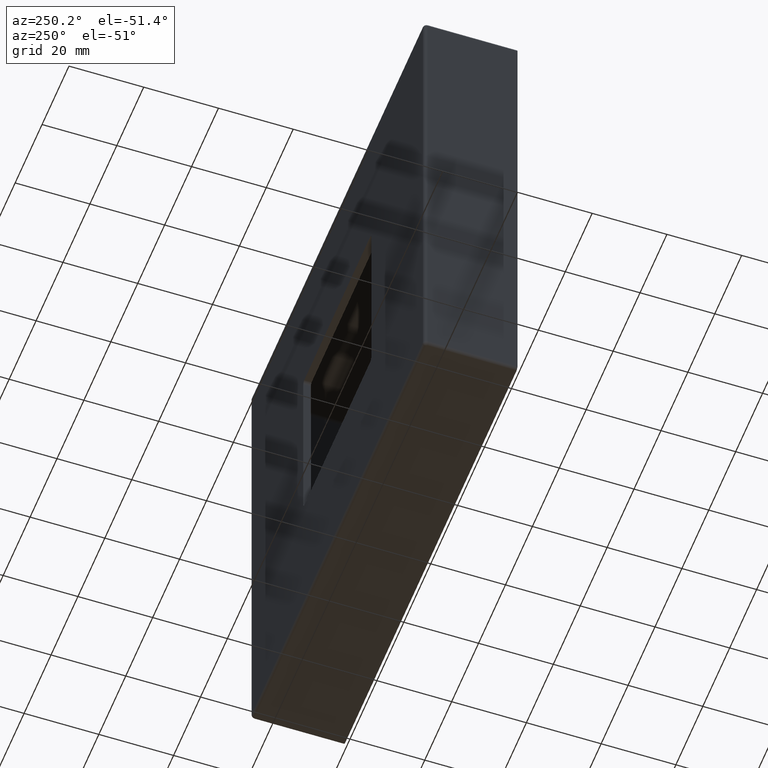
[diagram: clean part render]
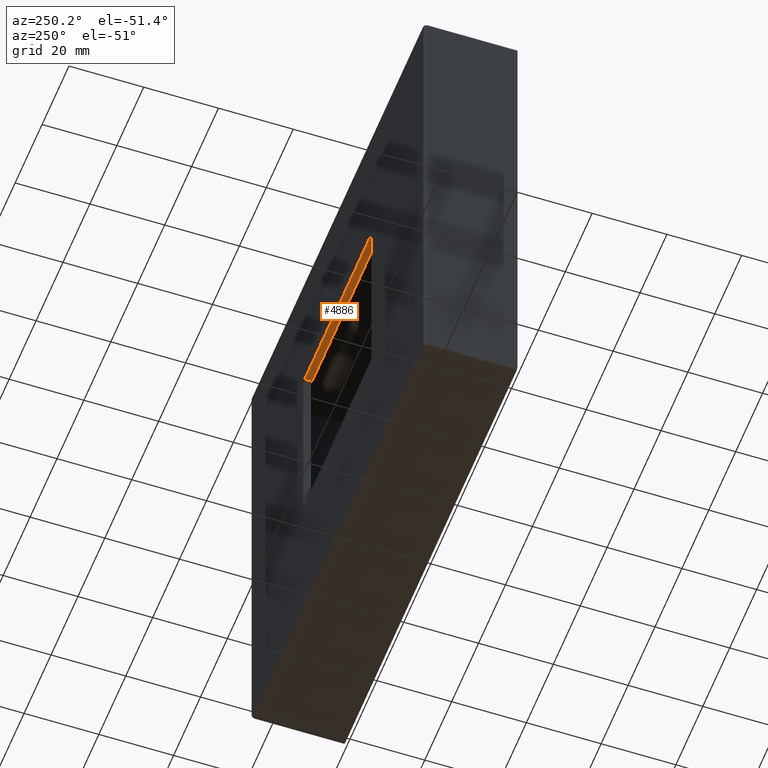
[diagram: same view with one face highlighted and labeled with its STEP entity id]
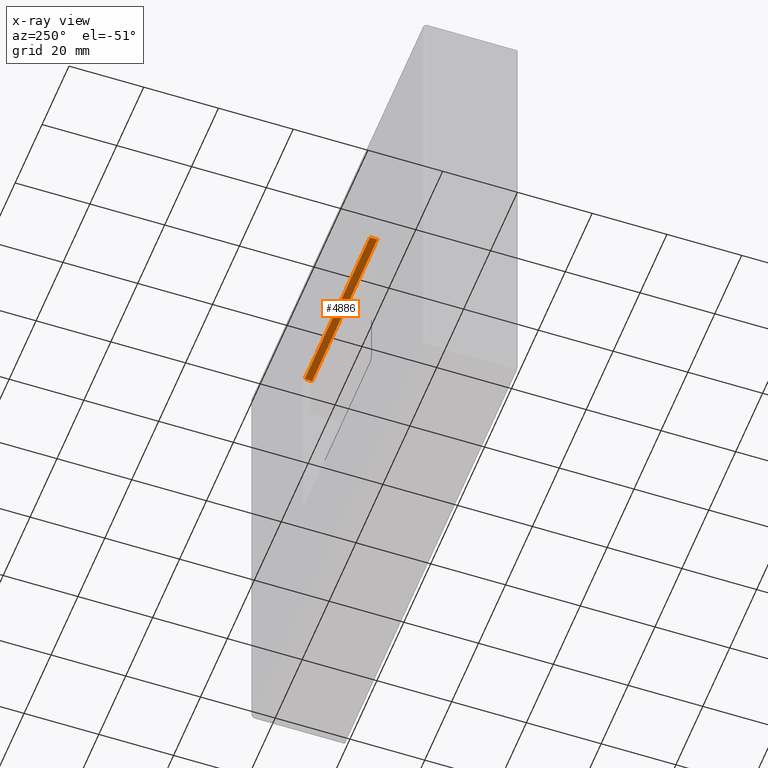
[diagram: x-ray of the same camera — body ghosted, the highlighted face saturated]
A machine part, auxiliary view. The second image highlights one B-rep face of the part: STEP entity #4886.
The next image is the same camera in x-ray: the body ghosted, the highlighted face saturated — about 0% of this face is hidden behind the body in this view.
In plain terms, the highlighted planar face has unit normal (-0, 0, 1).
Its self-contained STEP definition (entity closure, byte-faithful):
#560 = EDGE_CURVE ( 'NONE', #2190, #14757, #9535, .T. ) ;
#1466 = VECTOR ( 'NONE', #11329, 1000.000000000000000 ) ;
#1549 = PLANE ( 'NONE',  #7893 ) ;
#1795 = EDGE_CURVE ( 'NONE', #15178, #14128, #3362, .T. ) ;
#2190 = VERTEX_POINT ( 'NONE', #5075 ) ;
#2227 = EDGE_CURVE ( 'NONE', #2190, #14128, #7188, .T. ) ;
#3106 = VECTOR ( 'NONE', #15742, 1000.000000000000000 ) ;
#3362 = LINE ( 'NONE', #8825, #1466 ) ;
#4230 = CARTESIAN_POINT ( 'NONE',  ( 24.25000000000000355, 25.00000000000000000, 25.25000000000000000 ) ) ;
#4544 = CARTESIAN_POINT ( 'NONE',  ( -25.24999999999999645, 25.00000000000000000, 25.25000000000000000 ) ) ;
#4886 = ADVANCED_FACE ( 'NONE', ( #5298 ), #1549, .F. ) ;
#5070 = CARTESIAN_POINT ( 'NONE',  ( -24.24999999999999645, 25.00000000000000000, 25.25000000000000000 ) ) ;
#5075 = CARTESIAN_POINT ( 'NONE',  ( -24.24999999999999645, 23.00000000000000000, 25.25000000000000000 ) ) ;
#5100 = ORIENTED_EDGE ( 'NONE', *, *, #560, .T. ) ;
#5298 = FACE_OUTER_BOUND ( 'NONE', #12442, .T. ) ;
#6510 = DIRECTION ( 'NONE',  ( 1.000000000000000000, -0.000000000000000000, 0.000000000000000000 ) ) ;
#6612 = CARTESIAN_POINT ( 'NONE',  ( 0.000000000000000000, 23.00000000000000000, 25.25000000000000000 ) ) ;
#7188 = LINE ( 'NONE', #6612, #15071 ) ;
#7414 = VECTOR ( 'NONE', #13726, 1000.000000000000000 ) ;
#7856 = CARTESIAN_POINT ( 'NONE',  ( -25.24999999999999645, 0.000000000000000000, 25.25000000000000000 ) ) ;
#7893 = AXIS2_PLACEMENT_3D ( 'NONE', #7856, #13807, #13861 ) ;
#8825 = CARTESIAN_POINT ( 'NONE',  ( 24.25000000000000355, 23.00000000000000000, 25.25000000000000000 ) ) ;
#9535 = LINE ( 'NONE', #5070, #7414 ) ;
#10409 = LINE ( 'NONE', #4544, #3106 ) ;
#11329 = DIRECTION ( 'NONE',  ( -0.000000000000000000, -1.000000000000000000, 0.000000000000000000 ) ) ;
#12247 = ORIENTED_EDGE ( 'NONE', *, *, #1795, .T. ) ;
#12333 = ORIENTED_EDGE ( 'NONE', *, *, #15277, .T. ) ;
#12442 = EDGE_LOOP ( 'NONE', ( #14217, #5100, #12333, #12247 ) ) ;
#13726 = DIRECTION ( 'NONE',  ( 0.000000000000000000, 1.000000000000000000, -0.000000000000000000 ) ) ;
#13807 = DIRECTION ( 'NONE',  ( -0.000000000000000000, 0.000000000000000000, 1.000000000000000000 ) ) ;
#13861 = DIRECTION ( 'NONE',  ( 1.000000000000000000, 0.000000000000000000, 0.000000000000000000 ) ) ;
#14128 = VERTEX_POINT ( 'NONE', #15252 ) ;
#14142 = CARTESIAN_POINT ( 'NONE',  ( -24.24999999999999645, 25.00000000000000000, 25.25000000000000000 ) ) ;
#14217 = ORIENTED_EDGE ( 'NONE', *, *, #2227, .F. ) ;
#14757 = VERTEX_POINT ( 'NONE', #14142 ) ;
#15071 = VECTOR ( 'NONE', #6510, 1000.000000000000000 ) ;
#15178 = VERTEX_POINT ( 'NONE', #4230 ) ;
#15252 = CARTESIAN_POINT ( 'NONE',  ( 24.25000000000000355, 23.00000000000000000, 25.25000000000000000 ) ) ;
#15277 = EDGE_CURVE ( 'NONE', #14757, #15178, #10409, .T. ) ;
#15742 = DIRECTION ( 'NONE',  ( 1.000000000000000000, 0.000000000000000000, 0.000000000000000000 ) ) ;